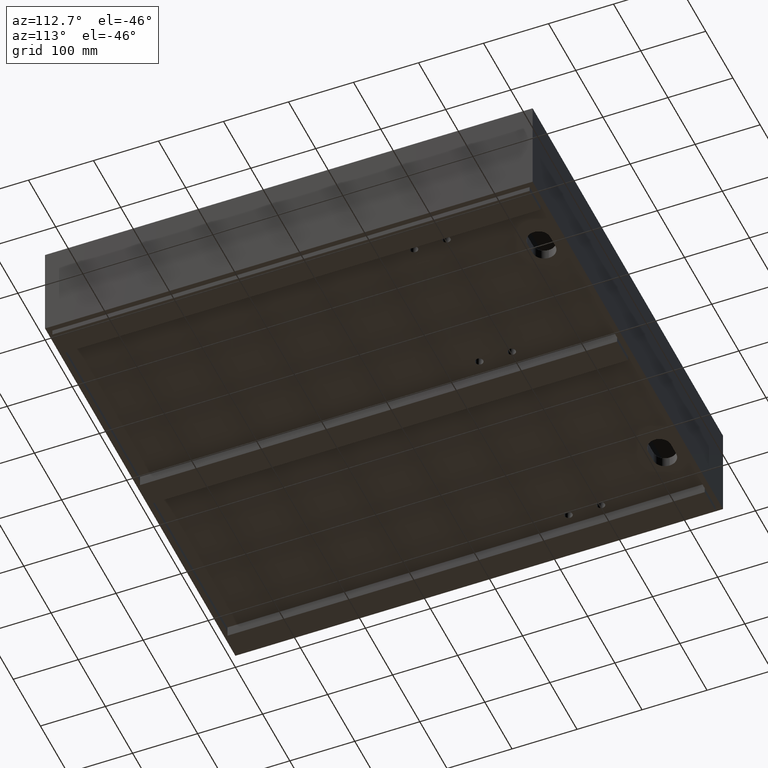
[diagram: clean part render]
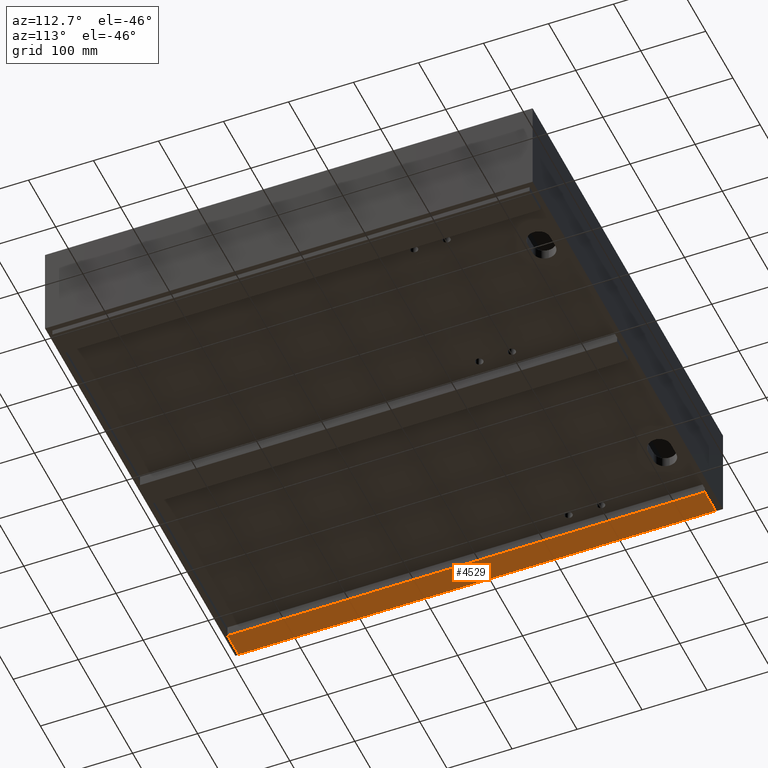
[diagram: same view with one face highlighted and labeled with its STEP entity id]
A machine part, auxiliary view. The second image highlights one B-rep face of the part: STEP entity #4529.
In plain terms, the highlighted planar face has unit normal (0, 0, 1).
Its self-contained STEP definition (entity closure, byte-faithful):
#163 = DIRECTION ( 'NONE',  ( 1.000000000000000000, -5.551887036575357587E-36, 0.0000000000000000000 ) ) ;
#208 = FACE_OUTER_BOUND ( 'NONE', #4914, .T. ) ;
#465 = DIRECTION ( 'NONE',  ( -1.134424071483470690E-16, -1.000000000000000000, 0.0000000000000000000 ) ) ;
#1511 = VERTEX_POINT ( 'NONE', #5232 ) ;
#1792 = CARTESIAN_POINT ( 'NONE',  ( 48.00000000000000711, 742.0000000000000000, -158.0000000000002558 ) ) ;
#1881 = EDGE_CURVE ( 'NONE', #1511, #10424, #4449, .T. ) ;
#1970 = CARTESIAN_POINT ( 'NONE',  ( 7.999999999999888978, 8.000000000000007105, -158.0000000000002558 ) ) ;
#2057 = ORIENTED_EDGE ( 'NONE', *, *, #3160, .T. ) ;
#2319 = EDGE_CURVE ( 'NONE', #10424, #6479, #4753, .T. ) ;
#2804 = DIRECTION ( 'NONE',  ( 1.000000000000000000, -5.551887036575357587E-36, 0.0000000000000000000 ) ) ;
#3135 = CARTESIAN_POINT ( 'NONE',  ( 7.999999999999979572, 742.0000000000000000, -158.0000000000002558 ) ) ;
#3160 = EDGE_CURVE ( 'NONE', #9782, #1511, #10860, .T. ) ;
#3650 = PLANE ( 'NONE',  #4381 ) ;
#4381 = AXIS2_PLACEMENT_3D ( 'NONE', #7091, #10524, #2804 ) ;
#4449 = LINE ( 'NONE', #7889, #5595 ) ;
#4485 = ORIENTED_EDGE ( 'NONE', *, *, #2319, .T. ) ;
#4529 = ADVANCED_FACE ( 'NONE', ( #208 ), #3650, .F. ) ;
#4753 = LINE ( 'NONE', #8186, #6284 ) ;
#4914 = EDGE_LOOP ( 'NONE', ( #2057, #8868, #4485, #8154 ) ) ;
#5232 = CARTESIAN_POINT ( 'NONE',  ( 7.999999999999979572, 742.0000000000000000, -158.0000000000002558 ) ) ;
#5400 = VECTOR ( 'NONE', #6576, 1000.000000000000000 ) ;
#5409 = DIRECTION ( 'NONE',  ( -1.000000000000000000, 5.551887036575357587E-36, 0.0000000000000000000 ) ) ;
#5468 = CARTESIAN_POINT ( 'NONE',  ( 47.99999999999992184, 8.000000000000007105, -158.0000000000002558 ) ) ;
#5546 = CARTESIAN_POINT ( 'NONE',  ( 7.999999999999888978, 8.000000000000007105, -158.0000000000002558 ) ) ;
#5595 = VECTOR ( 'NONE', #163, 1000.000000000000000 ) ;
#6284 = VECTOR ( 'NONE', #465, 1000.000000000000000 ) ;
#6479 = VERTEX_POINT ( 'NONE', #5468 ) ;
#6576 = DIRECTION ( 'NONE',  ( 1.228959410773759853E-16, 1.000000000000000000, 0.0000000000000000000 ) ) ;
#7091 = CARTESIAN_POINT ( 'NONE',  ( -3.469446951953614189E-15, 0.0000000000000000000, -158.0000000000002558 ) ) ;
#7889 = CARTESIAN_POINT ( 'NONE',  ( 7.999999999999979572, 742.0000000000000000, -158.0000000000002558 ) ) ;
#8154 = ORIENTED_EDGE ( 'NONE', *, *, #8518, .T. ) ;
#8186 = CARTESIAN_POINT ( 'NONE',  ( 48.00000000000000711, 742.0000000000000000, -158.0000000000002558 ) ) ;
#8518 = EDGE_CURVE ( 'NONE', #6479, #9782, #9687, .T. ) ;
#8868 = ORIENTED_EDGE ( 'NONE', *, *, #1881, .T. ) ;
#9687 = LINE ( 'NONE', #1970, #9855 ) ;
#9782 = VERTEX_POINT ( 'NONE', #5546 ) ;
#9855 = VECTOR ( 'NONE', #5409, 1000.000000000000000 ) ;
#10424 = VERTEX_POINT ( 'NONE', #1792 ) ;
#10524 = DIRECTION ( 'NONE',  ( 0.0000000000000000000, 0.0000000000000000000, 1.000000000000000000 ) ) ;
#10860 = LINE ( 'NONE', #3135, #5400 ) ;